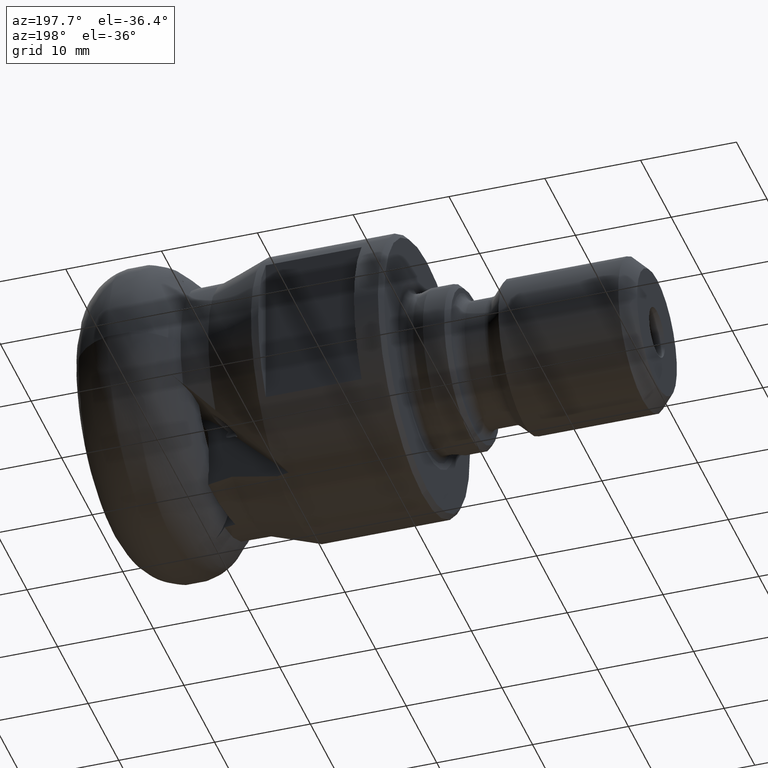
[diagram: clean part render]
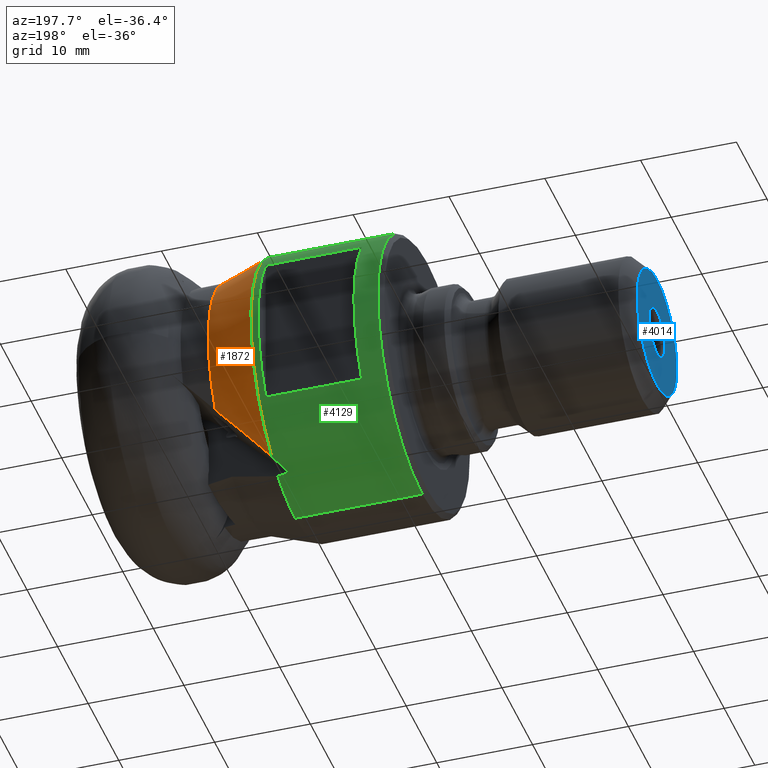
[diagram: same view with three faces highlighted in distinct colors, each labeled with its STEP entity id]
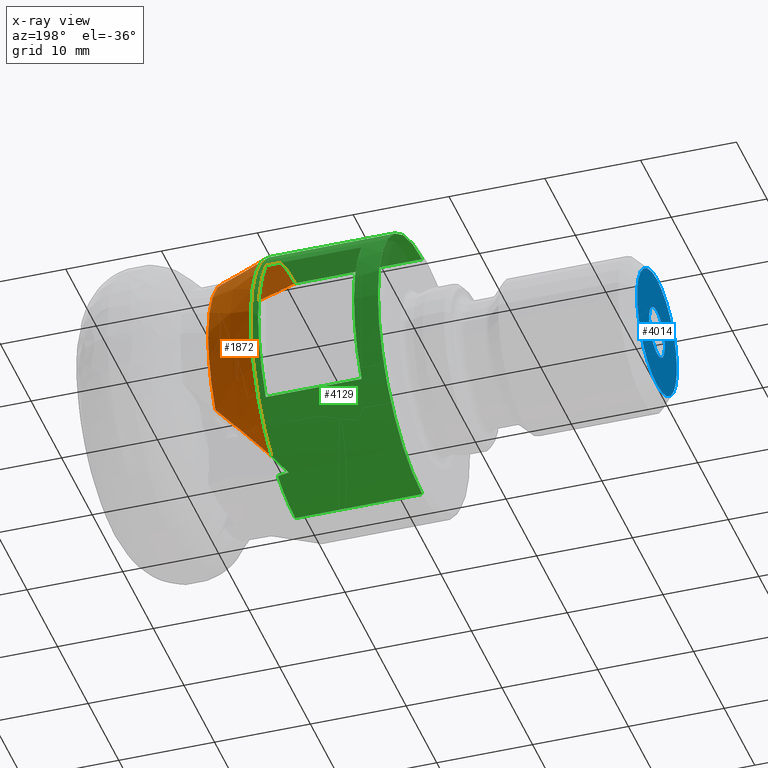
[diagram: x-ray of the same camera — body ghosted, the three highlighted faces saturated]
A machine part, auxiliary view with three faces highlighted in distinct colors.
The next image is the same camera in x-ray (body ghosted, the three faces saturated) — at least one of them is partly hidden behind the body in this view.
Their STEP definitions:

[orange] entity #1872 — the highlighted conical surface has half-angle 18.778 deg.
#117 = CARTESIAN_POINT ( 'NONE',  ( -13.00000000000000000, 10.46421511142435500, -7.371580705780693200 ) ) ;
#365 = ORIENTED_EDGE ( 'NONE', *, *, #4063, .T. ) ;
#431 = ORIENTED_EDGE ( 'NONE', *, *, #4146, .T. ) ;
#499 = CARTESIAN_POINT ( 'NONE',  ( -13.00000000000000000, 0.0000000000000000000, 0.0000000000000000000 ) ) ;
#637 = CARTESIAN_POINT ( 'NONE',  ( -13.00000000000000000, 0.0000000000000000000, 12.80000000000000100 ) ) ;
#675 = CARTESIAN_POINT ( 'NONE',  ( -13.00000000000000000, 10.46421511142435500, -7.371580705780693200 ) ) ;
#688 = CARTESIAN_POINT ( 'NONE',  ( -14.80936224973118300, 9.917464024187374600, -9.215915868444174200 ) ) ;
#735 = CIRCLE ( 'NONE', #2501, 12.80000000000000100 ) ;
#855 = CARTESIAN_POINT ( 'NONE',  ( -18.00000000000000000, 0.0000000000000000000, 0.0000000000000000000 ) ) ;
#1014 = DIRECTION ( 'NONE',  ( -1.000000000000000000, 0.0000000000000000000, 0.0000000000000000000 ) ) ;
#1019 = CARTESIAN_POINT ( 'NONE',  ( -18.00000000000000000, 7.707549104112340300, -12.28184378697665500 ) ) ;
#1071 =( BOUNDED_CURVE ( )  B_SPLINE_CURVE ( 3, ( #675, #688, #1432, #1019 ),
 .UNSPECIFIED., .F., .T. ) 
 B_SPLINE_CURVE_WITH_KNOTS ( ( 4, 4 ),
 ( 4.859872228534810800, 5.328326317937000000 ),
 .UNSPECIFIED. ) 
 CURVE ( )  GEOMETRIC_REPRESENTATION_ITEM ( )  RATIONAL_B_SPLINE_CURVE ( ( 1.000000000000000000, 0.9817960186766951900, 0.9817960186766951900, 1.000000000000000000 ) ) 
 REPRESENTATION_ITEM ( '' )  );
#1180 = DIRECTION ( 'NONE',  ( -0.9467727448197127400, 0.0000000000000000000, 0.3219027332387021100 ) ) ;
#1375 = DIRECTION ( 'NONE',  ( 0.0000000000000000000, 0.0000000000000000000, 1.000000000000000000 ) ) ;
#1432 = CARTESIAN_POINT ( 'NONE',  ( -16.50693143412558300, 8.981537771051289800, -10.88301812722572700 ) ) ;
#1517 = CARTESIAN_POINT ( 'NONE',  ( -13.00000000000000000, 0.0000000000000000000, 12.80000000000000100 ) ) ;
#1561 = VERTEX_POINT ( 'NONE', #117 ) ;
#1621 = CONICAL_SURFACE ( 'NONE', #1759, 12.80000000000000100, 0.3277385067805552200 ) ;
#1759 = AXIS2_PLACEMENT_3D ( 'NONE', #2767, #1014, #1375 ) ;
#1847 = VERTEX_POINT ( 'NONE', #637 ) ;
#1872 = ADVANCED_FACE ( 'NONE', ( #2562 ), #1621, .T. ) ;
#1927 = VECTOR ( 'NONE', #1180, 1000.000000000000200 ) ;
#2248 = DIRECTION ( 'NONE',  ( 1.000000000000000000, -0.0000000000000000000, -0.0000000000000000000 ) ) ;
#2501 = AXIS2_PLACEMENT_3D ( 'NONE', #499, #2248, #3027 ) ;
#2534 = LINE ( 'NONE', #1517, #1927 ) ;
#2562 = FACE_OUTER_BOUND ( 'NONE', #3837, .T. ) ;
#2628 = DIRECTION ( 'NONE',  ( 1.000000000000000000, -0.0000000000000000000, -0.0000000000000000000 ) ) ;
#2767 = CARTESIAN_POINT ( 'NONE',  ( -13.00000000000000000, 0.0000000000000000000, 0.0000000000000000000 ) ) ;
#2812 = EDGE_CURVE ( 'NONE', #1561, #1847, #735, .T. ) ;
#2844 = ORIENTED_EDGE ( 'NONE', *, *, #4291, .F. ) ;
#3027 = DIRECTION ( 'NONE',  ( 0.0000000000000000000, 0.0000000000000000000, -1.000000000000000000 ) ) ;
#3548 = CARTESIAN_POINT ( 'NONE',  ( -18.00000000000000000, 1.775737858763662000E-015, 14.49999999999999800 ) ) ;
#3837 = EDGE_LOOP ( 'NONE', ( #2844, #3915, #365, #431 ) ) ;
#3885 = CIRCLE ( 'NONE', #4522, 14.49999999999999800 ) ;
#3915 = ORIENTED_EDGE ( 'NONE', *, *, #2812, .F. ) ;
#4049 = DIRECTION ( 'NONE',  ( 0.0000000000000000000, 0.0000000000000000000, -1.000000000000000000 ) ) ;
#4063 = EDGE_CURVE ( 'NONE', #1561, #4207, #1071, .T. ) ;
#4070 = CARTESIAN_POINT ( 'NONE',  ( -18.00000000000000000, 7.707549104112340300, -12.28184378697665500 ) ) ;
#4146 = EDGE_CURVE ( 'NONE', #4207, #4580, #3885, .T. ) ;
#4207 = VERTEX_POINT ( 'NONE', #4070 ) ;
#4291 = EDGE_CURVE ( 'NONE', #1847, #4580, #2534, .T. ) ;
#4522 = AXIS2_PLACEMENT_3D ( 'NONE', #855, #2628, #4049 ) ;
#4580 = VERTEX_POINT ( 'NONE', #3548 ) ;

[blue] entity #4014 — the highlighted planar face has unit normal (-1, 0, 0).
#11 = CARTESIAN_POINT ( 'NONE',  ( -55.75000000000000000, 0.0000000000000000000, -6.499999999999976900 ) ) ;
#82 = CIRCLE ( 'NONE', #3821, 6.499999999999976900 ) ;
#207 = ORIENTED_EDGE ( 'NONE', *, *, #971, .F. ) ;
#251 = AXIS2_PLACEMENT_3D ( 'NONE', #3712, #3732, #2328 ) ;
#293 = DIRECTION ( 'NONE',  ( 0.0000000000000000000, 0.0000000000000000000, 1.000000000000000000 ) ) ;
#299 = DIRECTION ( 'NONE',  ( 0.0000000000000000000, 0.0000000000000000000, -1.000000000000000000 ) ) ;
#356 = VERTEX_POINT ( 'NONE', #11 ) ;
#367 = DIRECTION ( 'NONE',  ( 1.000000000000000000, -0.0000000000000000000, -0.0000000000000000000 ) ) ;
#422 = CARTESIAN_POINT ( 'NONE',  ( -55.75000000000000000, 0.0000000000000000000, 0.0000000000000000000 ) ) ;
#513 = CARTESIAN_POINT ( 'NONE',  ( -55.75000000000000000, 0.0000000000000000000, 0.0000000000000000000 ) ) ;
#598 = CARTESIAN_POINT ( 'NONE',  ( -55.75000000000000000, 3.156343757444637300E-016, -2.577350269189620400 ) ) ;
#692 = DIRECTION ( 'NONE',  ( 1.000000000000000000, -0.0000000000000000000, -0.0000000000000000000 ) ) ;
#874 = DIRECTION ( 'NONE',  ( 1.000000000000000000, -0.0000000000000000000, -0.0000000000000000000 ) ) ;
#971 = EDGE_CURVE ( 'Kante22', #356, #1145, #82, .T. ) ;
#1145 = VERTEX_POINT ( 'NONE', #3193 ) ;
#1169 = ORIENTED_EDGE ( 'NONE', *, *, #1239, .T. ) ;
#1222 = CIRCLE ( 'NONE', #2228, 2.577350269189620400 ) ;
#1239 = EDGE_CURVE ( 'NONE', #2962, #3866, #1222, .T. ) ;
#1490 = ORIENTED_EDGE ( 'NONE', *, *, #2485, .F. ) ;
#1646 = FACE_BOUND ( 'NONE', #4338, .T. ) ;
#1818 = AXIS2_PLACEMENT_3D ( 'NONE', #3535, #2475, #293 ) ;
#1956 = CIRCLE ( 'NONE', #3041, 2.577350269189620400 ) ;
#2228 = AXIS2_PLACEMENT_3D ( 'NONE', #422, #367, #2864 ) ;
#2328 = DIRECTION ( 'NONE',  ( 0.0000000000000000000, 0.0000000000000000000, -1.000000000000000000 ) ) ;
#2396 = ORIENTED_EDGE ( 'NONE', *, *, #2869, .T. ) ;
#2451 = CIRCLE ( 'NONE', #251, 6.499999999999976900 ) ;
#2453 = CARTESIAN_POINT ( 'NONE',  ( -55.75000000000000000, 0.0000000000000000000, 0.0000000000000000000 ) ) ;
#2475 = DIRECTION ( 'NONE',  ( -1.000000000000000000, 0.0000000000000000000, 0.0000000000000000000 ) ) ;
#2485 = EDGE_CURVE ( 'Kante22', #1145, #356, #2451, .T. ) ;
#2561 = EDGE_LOOP ( 'NONE', ( #207, #1490 ) ) ;
#2773 = CARTESIAN_POINT ( 'NONE',  ( -55.75000000000000000, 0.0000000000000000000, 2.577350269189620400 ) ) ;
#2864 = DIRECTION ( 'NONE',  ( 0.0000000000000000000, 0.0000000000000000000, -1.000000000000000000 ) ) ;
#2869 = EDGE_CURVE ( 'NONE', #3866, #2962, #1956, .T. ) ;
#2962 = VERTEX_POINT ( 'NONE', #598 ) ;
#3041 = AXIS2_PLACEMENT_3D ( 'NONE', #513, #874, #3378 ) ;
#3193 = CARTESIAN_POINT ( 'NONE',  ( -55.75000000000000000, 8.878689293818293300E-016, 6.499999999999976900 ) ) ;
#3378 = DIRECTION ( 'NONE',  ( 0.0000000000000000000, 0.0000000000000000000, -1.000000000000000000 ) ) ;
#3535 = CARTESIAN_POINT ( 'NONE',  ( -55.75000000000000000, 0.0000000000000000000, 0.0000000000000000000 ) ) ;
#3625 = FACE_OUTER_BOUND ( 'NONE', #2561, .T. ) ;
#3712 = CARTESIAN_POINT ( 'NONE',  ( -55.75000000000000000, 0.0000000000000000000, 0.0000000000000000000 ) ) ;
#3732 = DIRECTION ( 'NONE',  ( 1.000000000000000000, -0.0000000000000000000, -0.0000000000000000000 ) ) ;
#3821 = AXIS2_PLACEMENT_3D ( 'NONE', #2453, #692, #299 ) ;
#3866 = VERTEX_POINT ( 'NONE', #2773 ) ;
#4014 = ADVANCED_FACE ( 'NONE', ( #1646, #3625 ), #4611, .T. ) ;
#4338 = EDGE_LOOP ( 'NONE', ( #2396, #1169 ) ) ;
#4611 = PLANE ( 'NONE',  #1818 ) ;

[green] entity #4129 — the highlighted cylindrical surface (partial cylindrical patch) has radius 14.5 mm, axis along (1, -0, -0).
#44 = CARTESIAN_POINT ( 'NONE',  ( -18.39179860976990000, 5.766867858071933000, -13.30401533421901700 ) ) ;
#98 = DIRECTION ( 'NONE',  ( 1.000000000000000000, -0.0000000000000000000, -0.0000000000000000000 ) ) ;
#142 = CIRCLE ( 'NONE', #2639, 14.49999999999999800 ) ;
#404 = VERTEX_POINT ( 'NONE', #3599 ) ;
#456 = CARTESIAN_POINT ( 'NONE',  ( -31.24999999999995700, 0.0000000000000000000, -14.49999999999999600 ) ) ;
#560 = DIRECTION ( 'NONE',  ( 0.0000000000000000000, 0.0000000000000000000, -1.000000000000000000 ) ) ;
#643 = EDGE_CURVE ( 'NONE', #3711, #3818, #3708, .T. ) ;
#705 = LINE ( 'NONE', #2303, #4560 ) ;
#753 = CARTESIAN_POINT ( 'NONE',  ( -18.78254909893251700, 5.821784257979215800, -13.28007593950965600 ) ) ;
#855 = CARTESIAN_POINT ( 'NONE',  ( -18.00000000000000000, 0.0000000000000000000, 0.0000000000000000000 ) ) ;
#908 = CARTESIAN_POINT ( 'NONE',  ( -18.00000000000000000, 0.0000000000000000000, 0.0000000000000000000 ) ) ;
#920 = CYLINDRICAL_SURFACE ( 'NONE', #2929, 14.49999999999999800 ) ;
#932 = VERTEX_POINT ( 'NONE', #3448 ) ;
#1033 = EDGE_CURVE ( 'NONE', #3818, #2568, #142, .T. ) ;
#1042 = VECTOR ( 'NONE', #1987, 1000.000000000000000 ) ;
#1130 = CARTESIAN_POINT ( 'NONE',  ( 0.0000000000000000000, 1.775737858763662000E-015, 14.49999999999999800 ) ) ;
#1176 =( BOUNDED_CURVE ( )  B_SPLINE_CURVE ( 3, ( #1820, #44, #753, #2531 ),
 .UNSPECIFIED., .F., .T. ) 
 B_SPLINE_CURVE_WITH_KNOTS ( ( 4, 4 ),
 ( 1.975686186629453300, 1.988080757354239400 ),
 .UNSPECIFIED. ) 
 CURVE ( )  GEOMETRIC_REPRESENTATION_ITEM ( )  RATIONAL_B_SPLINE_CURVE ( ( 1.000000000000000000, 0.9999871979256858000, 0.9999871979256858000, 1.000000000000000000 ) ) 
 REPRESENTATION_ITEM ( '' )  );
#1192 = CARTESIAN_POINT ( 'NONE',  ( -31.24999999999995700, 0.0000000000000000000, 0.0000000000000000000 ) ) ;
#1285 = ORIENTED_EDGE ( 'NONE', *, *, #4396, .F. ) ;
#1450 = DIRECTION ( 'NONE',  ( 1.000000000000000000, -0.0000000000000000000, -0.0000000000000000000 ) ) ;
#1513 = AXIS2_PLACEMENT_3D ( 'NONE', #4132, #2365, #3860 ) ;
#1616 = DIRECTION ( 'NONE',  ( 0.0000000000000000000, 0.0000000000000000000, -1.000000000000000000 ) ) ;
#1631 = EDGE_LOOP ( 'NONE', ( #2541, #2164, #2507, #1679 ) ) ;
#1655 = EDGE_LOOP ( 'NONE', ( #3690, #2727, #2217, #4103, #4058, #2706, #1285 ) ) ;
#1679 = ORIENTED_EDGE ( 'NONE', *, *, #643, .F. ) ;
#1820 = CARTESIAN_POINT ( 'NONE',  ( -18.00000000000000000, 5.711804154419635200, -13.32761393879469100 ) ) ;
#1842 = CARTESIAN_POINT ( 'NONE',  ( -18.00000000000000000, 0.0000000000000000000, -14.49999999999999800 ) ) ;
#1853 = DIRECTION ( 'NONE',  ( 1.000000000000000000, -0.0000000000000000000, -0.0000000000000000000 ) ) ;
#1962 = FACE_OUTER_BOUND ( 'NONE', #1655, .T. ) ;
#1987 = DIRECTION ( 'NONE',  ( 1.000000000000000000, -0.0000000000000000000, -0.0000000000000000000 ) ) ;
#2102 = CARTESIAN_POINT ( 'NONE',  ( -19.17223646023747100, 5.876551245009985700, -13.25579667408835500 ) ) ;
#2164 = ORIENTED_EDGE ( 'NONE', *, *, #4267, .F. ) ;
#2217 = ORIENTED_EDGE ( 'NONE', *, *, #4146, .F. ) ;
#2303 = CARTESIAN_POINT ( 'NONE',  ( -2.081668171172168900E-015, 12.00000000000000000, 8.139410298049849500 ) ) ;
#2350 = FACE_BOUND ( 'NONE', #1631, .T. ) ;
#2365 = DIRECTION ( 'NONE',  ( -1.000000000000000000, -0.0000000000000000000, -0.0000000000000000000 ) ) ;
#2507 = ORIENTED_EDGE ( 'NONE', *, *, #1033, .F. ) ;
#2531 = CARTESIAN_POINT ( 'NONE',  ( -19.17223646023747100, 5.876551245009985700, -13.25579667408835500 ) ) ;
#2541 = ORIENTED_EDGE ( 'NONE', *, *, #3904, .F. ) ;
#2568 = VERTEX_POINT ( 'NONE', #3781 ) ;
#2628 = DIRECTION ( 'NONE',  ( 1.000000000000000000, -0.0000000000000000000, -0.0000000000000000000 ) ) ;
#2639 = AXIS2_PLACEMENT_3D ( 'NONE', #3897, #2838, #4254 ) ;
#2681 = VERTEX_POINT ( 'NONE', #4353 ) ;
#2706 = ORIENTED_EDGE ( 'NONE', *, *, #3755, .F. ) ;
#2727 = ORIENTED_EDGE ( 'NONE', *, *, #4145, .T. ) ;
#2741 = CARTESIAN_POINT ( 'NONE',  ( -28.74999999999996100, 11.99999999999999500, -8.139410298049858400 ) ) ;
#2743 = AXIS2_PLACEMENT_3D ( 'NONE', #1192, #98, #1616 ) ;
#2764 = LINE ( 'NONE', #4117, #1042 ) ;
#2838 = DIRECTION ( 'NONE',  ( 1.000000000000000000, -0.0000000000000000000, -0.0000000000000000000 ) ) ;
#2929 = AXIS2_PLACEMENT_3D ( 'NONE', #3569, #1450, #3917 ) ;
#2942 = VERTEX_POINT ( 'NONE', #456 ) ;
#2998 = EDGE_CURVE ( 'NONE', #2942, #3340, #4006, .T. ) ;
#3104 = LINE ( 'NONE', #1130, #3920 ) ;
#3189 = CARTESIAN_POINT ( 'NONE',  ( -18.81962802580578000, 6.509618994370247200, -12.97514548712869100 ) ) ;
#3275 = VECTOR ( 'NONE', #4455, 1000.000000000000000 ) ;
#3340 = VERTEX_POINT ( 'NONE', #3899 ) ;
#3374 = CARTESIAN_POINT ( 'NONE',  ( -2.081668171172168900E-015, 12.00000000000000000, -8.139410298049849500 ) ) ;
#3448 = CARTESIAN_POINT ( 'NONE',  ( -19.17223646023747100, 5.876551245009985700, -13.25579667408835500 ) ) ;
#3540 = VERTEX_POINT ( 'NONE', #1842 ) ;
#3548 = CARTESIAN_POINT ( 'NONE',  ( -18.00000000000000000, 1.775737858763662000E-015, 14.49999999999999800 ) ) ;
#3569 = CARTESIAN_POINT ( 'NONE',  ( 0.0000000000000000000, 0.0000000000000000000, 0.0000000000000000000 ) ) ;
#3578 = EDGE_CURVE ( 'NONE', #404, #932, #1176, .T. ) ;
#3599 = CARTESIAN_POINT ( 'NONE',  ( -18.00000000000000000, 5.711804154419635200, -13.32761393879469100 ) ) ;
#3690 = ORIENTED_EDGE ( 'NONE', *, *, #2998, .T. ) ;
#3708 = LINE ( 'NONE', #3374, #3275 ) ;
#3711 = VERTEX_POINT ( 'NONE', #3752 ) ;
#3752 = CARTESIAN_POINT ( 'NONE',  ( -18.74999999999996100, 11.99999999999999600, -8.139410298049847700 ) ) ;
#3755 = EDGE_CURVE ( 'NONE', #3540, #404, #4643, .T. ) ;
#3781 = CARTESIAN_POINT ( 'NONE',  ( -28.74999999999996100, 11.99999999999999500, 8.139410298049858400 ) ) ;
#3818 = VERTEX_POINT ( 'NONE', #2741 ) ;
#3860 = DIRECTION ( 'NONE',  ( 0.0000000000000000000, 1.776356839400250500E-015, -1.000000000000000000 ) ) ;
#3885 = CIRCLE ( 'NONE', #4522, 14.49999999999999800 ) ;
#3897 = CARTESIAN_POINT ( 'NONE',  ( -28.74999999999996100, 0.0000000000000000000, 0.0000000000000000000 ) ) ;
#3899 = CARTESIAN_POINT ( 'NONE',  ( -31.24999999999995700, 1.775737858763661600E-015, 14.49999999999999600 ) ) ;
#3904 = EDGE_CURVE ( 'NONE', #2681, #3711, #4634, .T. ) ;
#3917 = DIRECTION ( 'NONE',  ( 0.0000000000000000000, 0.0000000000000000000, -1.000000000000000000 ) ) ;
#3920 = VECTOR ( 'NONE', #1853, 1000.000000000000000 ) ;
#4000 = DIRECTION ( 'NONE',  ( 1.000000000000000000, -0.0000000000000000000, -0.0000000000000000000 ) ) ;
#4006 = CIRCLE ( 'NONE', #2743, 14.49999999999999600 ) ;
#4022 = EDGE_CURVE ( 'NONE', #4207, #932, #4364, .T. ) ;
#4049 = DIRECTION ( 'NONE',  ( 0.0000000000000000000, 0.0000000000000000000, -1.000000000000000000 ) ) ;
#4058 = ORIENTED_EDGE ( 'NONE', *, *, #3578, .F. ) ;
#4070 = CARTESIAN_POINT ( 'NONE',  ( -18.00000000000000000, 7.707549104112340300, -12.28184378697665500 ) ) ;
#4103 = ORIENTED_EDGE ( 'NONE', *, *, #4022, .T. ) ;
#4117 = CARTESIAN_POINT ( 'NONE',  ( 0.0000000000000000000, 0.0000000000000000000, -14.49999999999999800 ) ) ;
#4129 = ADVANCED_FACE ( 'NONE', ( #2350, #1962 ), #920, .T. ) ;
#4132 = CARTESIAN_POINT ( 'NONE',  ( -18.74999999999996100, 0.0000000000000000000, 0.0000000000000000000 ) ) ;
#4145 = EDGE_CURVE ( 'NONE', #3340, #4580, #3104, .T. ) ;
#4146 = EDGE_CURVE ( 'NONE', #4207, #4580, #3885, .T. ) ;
#4207 = VERTEX_POINT ( 'NONE', #4070 ) ;
#4222 = CARTESIAN_POINT ( 'NONE',  ( -18.00000000000000000, 7.707549104112340300, -12.28184378697665500 ) ) ;
#4254 = DIRECTION ( 'NONE',  ( 0.0000000000000000000, 0.0000000000000000000, 1.000000000000000000 ) ) ;
#4267 = EDGE_CURVE ( 'NONE', #2568, #2681, #705, .T. ) ;
#4353 = CARTESIAN_POINT ( 'NONE',  ( -18.74999999999996100, 11.99999999999999600, 8.139410298049847700 ) ) ;
#4364 =( BOUNDED_CURVE ( )  B_SPLINE_CURVE ( 3, ( #4222, #4630, #3189, #2102 ),
 .UNSPECIFIED., .F., .F. ) 
 B_SPLINE_CURVE_WITH_KNOTS ( ( 4, 4 ),
 ( 2.432647605558716700, 2.575798655508566800 ),
 .UNSPECIFIED. ) 
 CURVE ( )  GEOMETRIC_REPRESENTATION_ITEM ( )  RATIONAL_B_SPLINE_CURVE ( ( 1.000000000000000000, 0.9982930436642698500, 0.9982930436642698500, 1.000000000000000000 ) ) 
 REPRESENTATION_ITEM ( '' )  );
#4367 = DIRECTION ( 'NONE',  ( 1.000000000000000000, -0.0000000000000000000, -0.0000000000000000000 ) ) ;
#4396 = EDGE_CURVE ( 'NONE', #2942, #3540, #2764, .T. ) ;
#4455 = DIRECTION ( 'NONE',  ( -1.000000000000000000, 0.0000000000000000000, 0.0000000000000000000 ) ) ;
#4522 = AXIS2_PLACEMENT_3D ( 'NONE', #855, #2628, #4049 ) ;
#4545 = AXIS2_PLACEMENT_3D ( 'NONE', #908, #4367, #560 ) ;
#4560 = VECTOR ( 'NONE', #4000, 1000.000000000000000 ) ;
#4580 = VERTEX_POINT ( 'NONE', #3548 ) ;
#4630 = CARTESIAN_POINT ( 'NONE',  ( -18.42821441311387800, 7.120995206569964400, -12.64993941218808400 ) ) ;
#4634 = CIRCLE ( 'NONE', #1513, 14.49999999999999800 ) ;
#4643 = CIRCLE ( 'NONE', #4545, 14.49999999999999800 ) ;